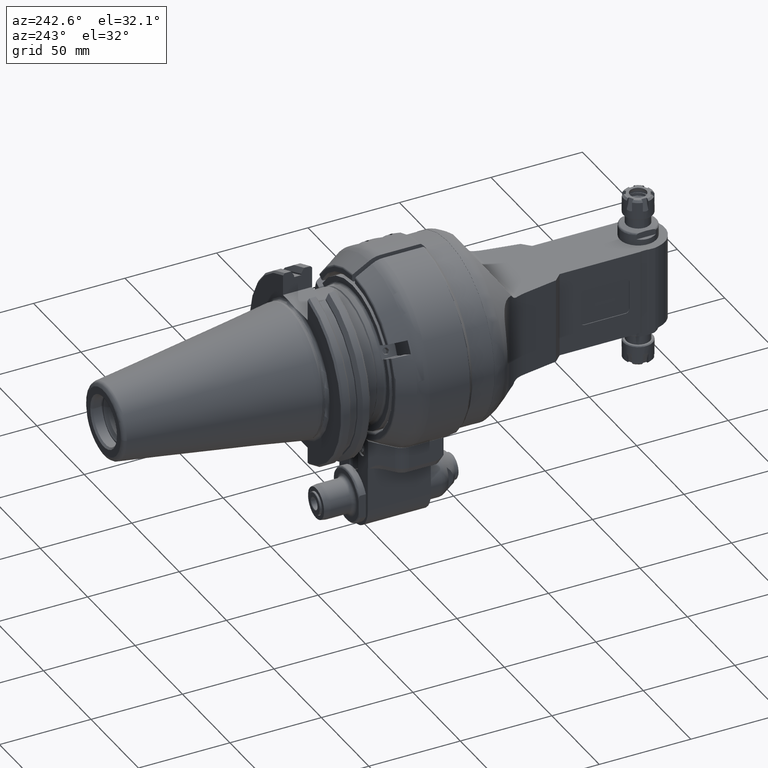
[diagram: clean part render]
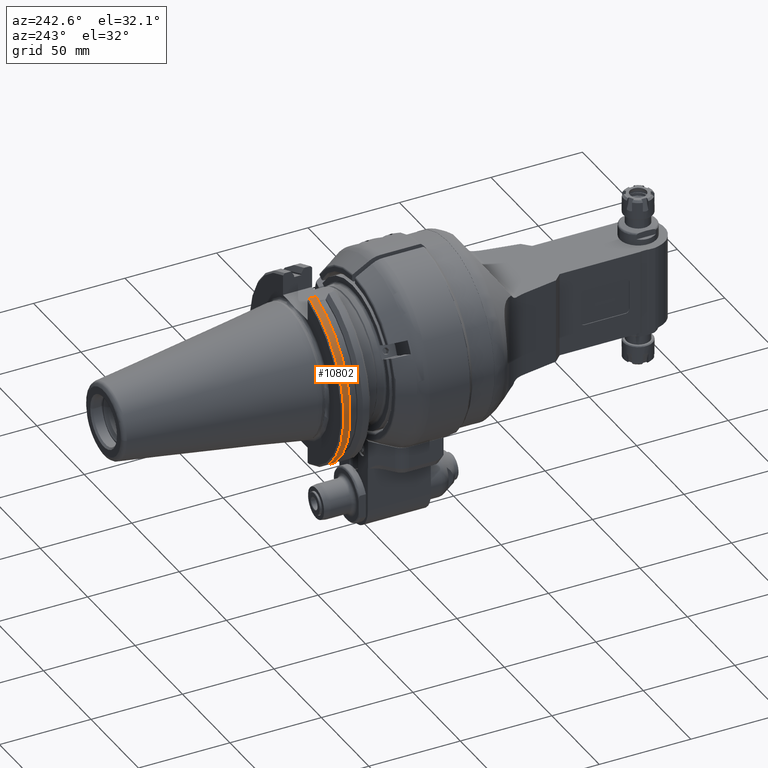
[diagram: same view with one face highlighted and labeled with its STEP entity id]
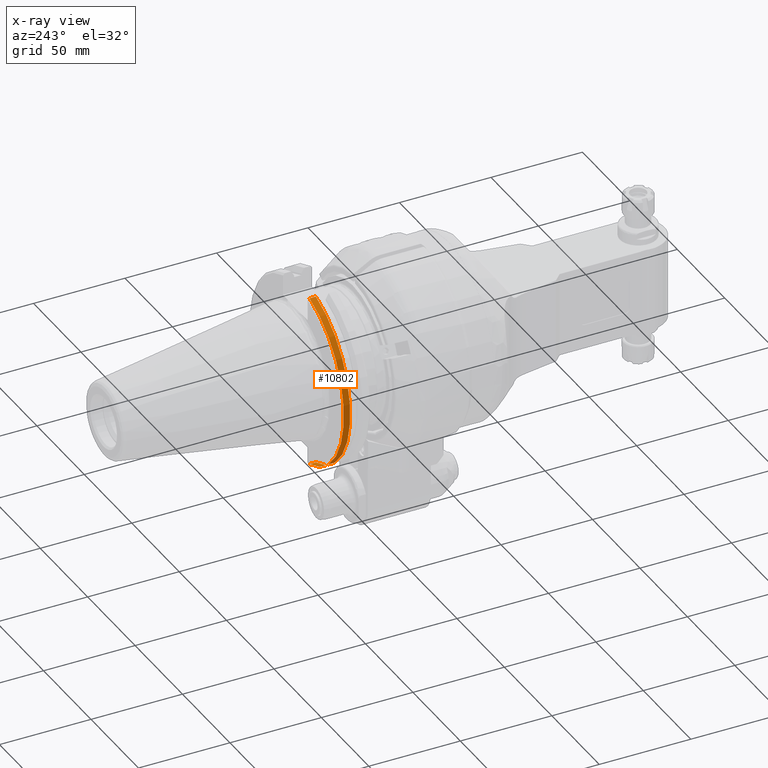
[diagram: x-ray of the same camera — body ghosted, the highlighted face saturated]
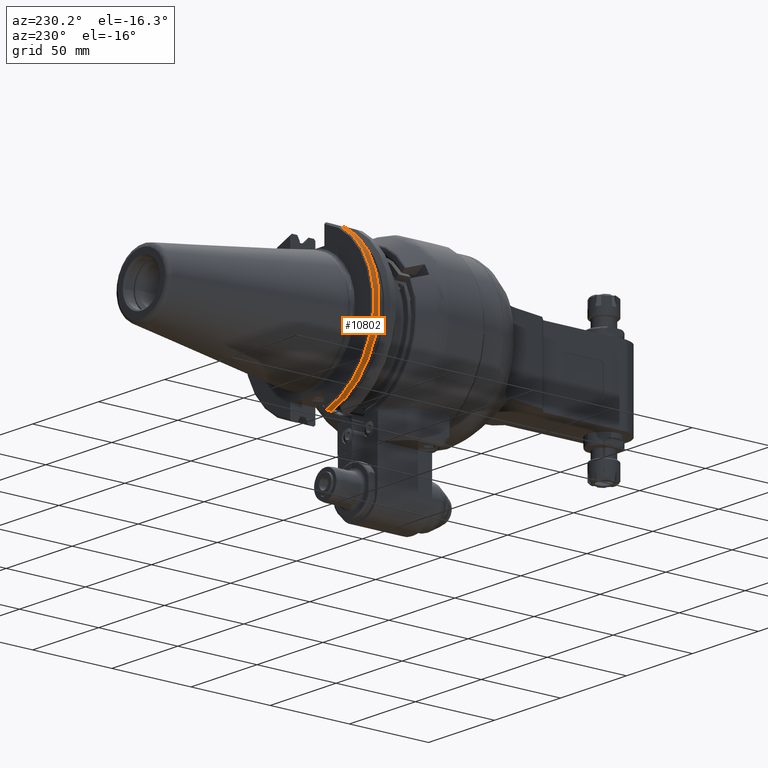
[diagram: same view with one face highlighted and labeled with its STEP entity id]
A machine part, auxiliary view. The second image highlights one B-rep face of the part: STEP entity #10802.
The next image is the same camera in x-ray: the body ghosted, the highlighted face saturated — about 0% of this face is hidden behind the body in this view.
A second angle (auxiliary view) of the same face is appended — the face is thin or edge-on in the first view.
In plain terms, the highlighted cylindrical surface (partial cylindrical patch) has radius 49.2125 mm, axis along (0, -1, 0).
Its self-contained STEP definition (entity closure, byte-faithful):
#686=CYLINDRICAL_SURFACE('',#12104,1.9375);
#1276=CIRCLE('',#12103,1.9375);
#1277=CIRCLE('',#12105,1.9375);
#1874=FACE_OUTER_BOUND('',#2613,.T.);
#2613=EDGE_LOOP('',(#9657,#9658,#9659,#9660));
#3357=LINE('',#21326,#4110);
#3365=LINE('',#21359,#4118);
#4110=VECTOR('',#15205,0.137296583894685);
#4118=VECTOR('',#15221,0.137296583894685);
#5148=VERTEX_POINT('',#21323);
#5149=VERTEX_POINT('',#21325);
#5160=VERTEX_POINT('',#21354);
#5161=VERTEX_POINT('',#21358);
#6663=EDGE_CURVE('',#5149,#5148,#3357,.T.);
#6676=EDGE_CURVE('',#5161,#5160,#3365,.T.);
#6685=EDGE_CURVE('',#5149,#5160,#1276,.T.);
#6686=EDGE_CURVE('',#5161,#5148,#1277,.T.);
#9657=ORIENTED_EDGE('',*,*,#6685,.F.);
#9658=ORIENTED_EDGE('',*,*,#6663,.T.);
#9659=ORIENTED_EDGE('',*,*,#6686,.F.);
#9660=ORIENTED_EDGE('',*,*,#6676,.T.);
#10802=ADVANCED_FACE('',(#1874),#686,.T.);
#12103=AXIS2_PLACEMENT_3D('',#21375,#15245,#15246);
#12104=AXIS2_PLACEMENT_3D('',#21376,#15247,#15248);
#12105=AXIS2_PLACEMENT_3D('',#21377,#15249,#15250);
#15205=DIRECTION('',(0.,1.,0.));
#15221=DIRECTION('',(0.,-1.,0.));
#15245=DIRECTION('center_axis',(0.,-1.,0.));
#15246=DIRECTION('ref_axis',(-0.2632258064516,0.,0.964734250878399));
#15247=DIRECTION('center_axis',(0.,-1.,0.));
#15248=DIRECTION('ref_axis',(-1.,0.,1.22464679914735E-16));
#15249=DIRECTION('center_axis',(0.,1.,0.));
#15250=DIRECTION('ref_axis',(-1.,0.,0.));
#21323=CARTESIAN_POINT('',(-0.51,2.76919291338583,1.86917261107677));
#21325=CARTESIAN_POINT('',(-0.51,2.63189632949094,1.86917261107677));
#21326=CARTESIAN_POINT('',(-0.51,2.63189632949094,1.86917261107677));
#21354=CARTESIAN_POINT('',(-0.51,2.63189632949094,-1.86917261107677));
#21358=CARTESIAN_POINT('',(-0.51,2.76919291338583,-1.86917261107677));
#21359=CARTESIAN_POINT('',(-0.51,2.76919291338583,-1.86917261107677));
#21375=CARTESIAN_POINT('Origin',(0.,2.63189632949094,0.));
#21376=CARTESIAN_POINT('Origin',(0.,2.28455298203071,0.));
#21377=CARTESIAN_POINT('Origin',(0.,2.76919291338583,0.));